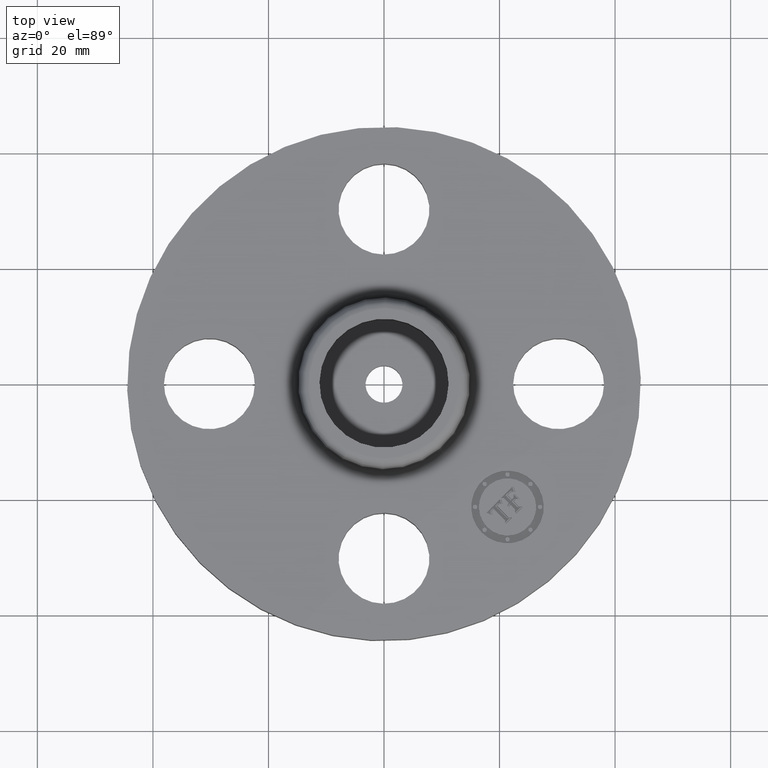
[diagram: clean part render]
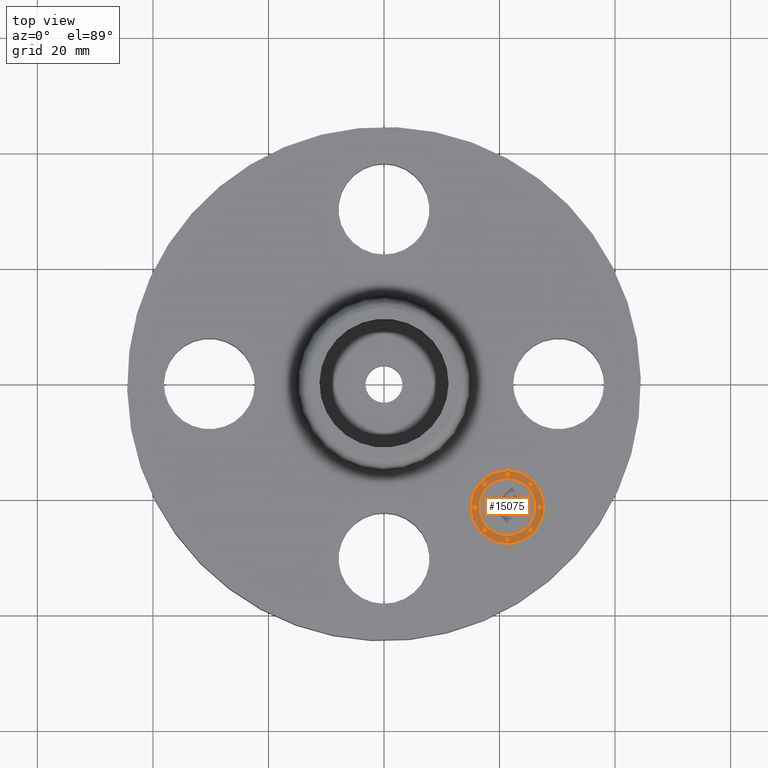
[diagram: same view with one face highlighted and labeled with its STEP entity id]
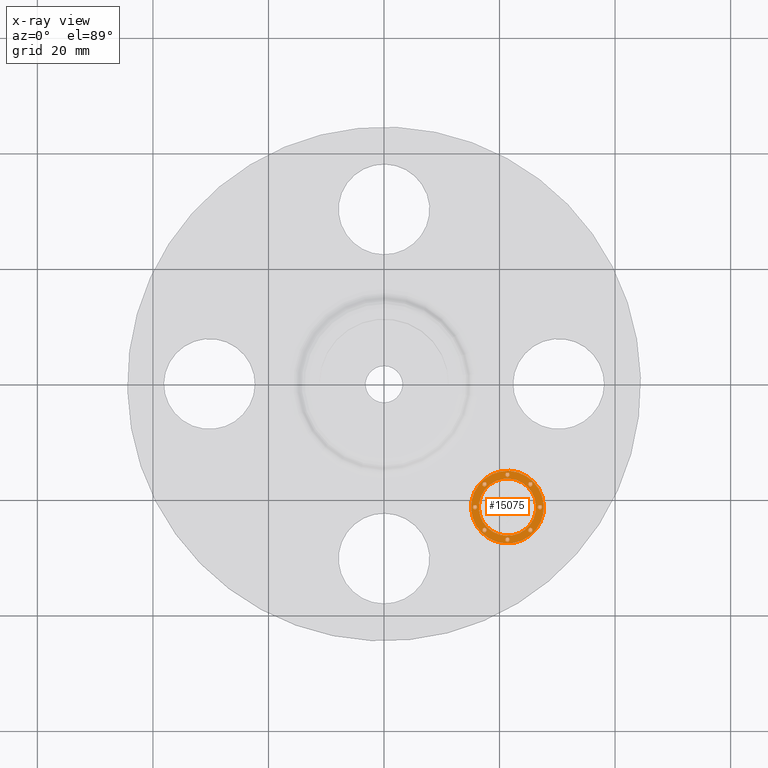
[diagram: x-ray of the same camera — body ghosted, the highlighted face saturated]
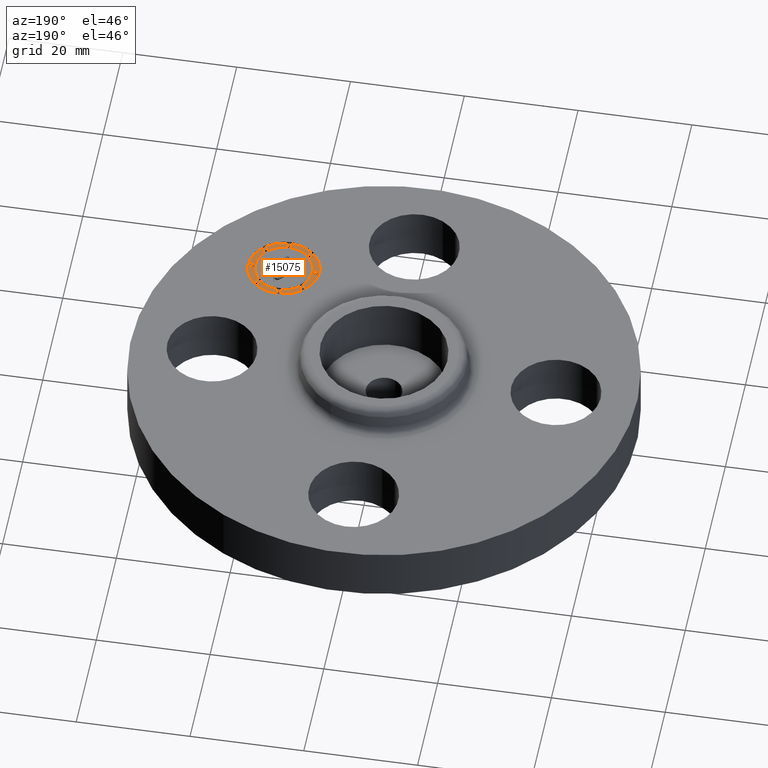
[diagram: same view with one face highlighted and labeled with its STEP entity id]
A machine part, top view. The second image highlights one B-rep face of the part: STEP entity #15075.
The next image is the same camera in x-ray: the body ghosted, the highlighted face saturated — about 0% of this face is hidden behind the body in this view.
A second angle (auxiliary view) of the same face is appended — the face is thin or edge-on in the first view.
In plain terms, the highlighted planar face has unit normal (0, -0, 1).
Its self-contained STEP definition (entity closure, byte-faithful):
#3726=AXIS2_PLACEMENT_3D('Plane Axis2P3D',#3723,#3724,#3725) ;
#14897=AXIS2_PLACEMENT_3D('Circle Axis2P3D',#14895,#14896,$) ;
#14906=AXIS2_PLACEMENT_3D('Circle Axis2P3D',#14904,#14905,$) ;
#14915=AXIS2_PLACEMENT_3D('Circle Axis2P3D',#14913,#14914,$) ;
#14924=AXIS2_PLACEMENT_3D('Circle Axis2P3D',#14922,#14923,$) ;
#14933=AXIS2_PLACEMENT_3D('Circle Axis2P3D',#14931,#14932,$) ;
#14942=AXIS2_PLACEMENT_3D('Circle Axis2P3D',#14940,#14941,$) ;
#14951=AXIS2_PLACEMENT_3D('Circle Axis2P3D',#14949,#14950,$) ;
#14960=AXIS2_PLACEMENT_3D('Circle Axis2P3D',#14958,#14959,$) ;
#14969=AXIS2_PLACEMENT_3D('Circle Axis2P3D',#14967,#14968,$) ;
#14978=AXIS2_PLACEMENT_3D('Circle Axis2P3D',#14976,#14977,$) ;
#14987=AXIS2_PLACEMENT_3D('Circle Axis2P3D',#14985,#14986,$) ;
#14996=AXIS2_PLACEMENT_3D('Circle Axis2P3D',#14994,#14995,$) ;
#15005=AXIS2_PLACEMENT_3D('Circle Axis2P3D',#15003,#15004,$) ;
#15014=AXIS2_PLACEMENT_3D('Circle Axis2P3D',#15012,#15013,$) ;
#15023=AXIS2_PLACEMENT_3D('Circle Axis2P3D',#15021,#15022,$) ;
#15032=AXIS2_PLACEMENT_3D('Circle Axis2P3D',#15030,#15031,$) ;
#15041=AXIS2_PLACEMENT_3D('Circle Axis2P3D',#15039,#15040,$) ;
#15050=AXIS2_PLACEMENT_3D('Circle Axis2P3D',#15048,#15049,$) ;
#15059=AXIS2_PLACEMENT_3D('Circle Axis2P3D',#15057,#15058,$) ;
#15068=AXIS2_PLACEMENT_3D('Circle Axis2P3D',#15066,#15067,$) ;
#3723=CARTESIAN_POINT('Axis2P3D Location',(0.,0.,0.365000000001)) ;
#14895=CARTESIAN_POINT('Axis2P3D Location',(0.841457069615,-0.841457069615,0.365000000001)) ;
#14899=CARTESIAN_POINT('Vertex',(1.01646599796,-0.666448141271,0.365000000001)) ;
#14901=CARTESIAN_POINT('Vertex',(0.666448141271,-1.01646599796,0.365000000001)) ;
#14904=CARTESIAN_POINT('Axis2P3D Location',(0.841457069615,-0.841457069615,0.365000000001)) ;
#14913=CARTESIAN_POINT('Axis2P3D Location',(0.841457069615,-0.841457069615,0.365000000001)) ;
#14917=CARTESIAN_POINT('Vertex',(0.703571247283,-0.979342891947,0.365000000001)) ;
#14919=CARTESIAN_POINT('Vertex',(0.979342891947,-0.703571247283,0.365000000001)) ;
#14922=CARTESIAN_POINT('Axis2P3D Location',(0.841457069615,-0.841457069615,0.365000000001)) ;
#14931=CARTESIAN_POINT('Axis2P3D Location',(0.685009694277,-0.685009694277,0.365000000001)) ;
#14935=CARTESIAN_POINT('Vertex',(0.674403092559,-0.695616295995,0.365000000001)) ;
#14937=CARTESIAN_POINT('Vertex',(0.695616295995,-0.674403092559,0.365000000001)) ;
#14940=CARTESIAN_POINT('Axis2P3D Location',(0.685009694277,-0.685009694277,0.365000000001)) ;
#14949=CARTESIAN_POINT('Axis2P3D Location',(0.997904444954,-0.685009694277,0.365000000001)) ;
#14953=CARTESIAN_POINT('Vertex',(0.987297843236,-0.695616295995,0.365000000001)) ;
#14955=CARTESIAN_POINT('Vertex',(1.00851104667,-0.674403092559,0.365000000001)) ;
#14958=CARTESIAN_POINT('Axis2P3D Location',(0.997904444954,-0.685009694277,0.365000000001)) ;
#14967=CARTESIAN_POINT('Axis2P3D Location',(0.841457069615,-0.620207069614,0.365000000001)) ;
#14971=CARTESIAN_POINT('Vertex',(0.830850467898,-0.630813671332,0.365000000001)) ;
#14973=CARTESIAN_POINT('Vertex',(0.852063671333,-0.609600467897,0.365000000001)) ;
#14976=CARTESIAN_POINT('Axis2P3D Location',(0.841457069615,-0.620207069614,0.365000000001)) ;
#14985=CARTESIAN_POINT('Axis2P3D Location',(0.997904444954,-0.997904444954,0.365000000001)) ;
#14989=CARTESIAN_POINT('Vertex',(0.987297843236,-1.00851104667,0.365000000001)) ;
#14991=CARTESIAN_POINT('Vertex',(1.00851104667,-0.987297843236,0.365000000001)) ;
#14994=CARTESIAN_POINT('Axis2P3D Location',(0.997904444954,-0.997904444954,0.365000000001)) ;
#15003=CARTESIAN_POINT('Axis2P3D Location',(1.06270706962,-0.841457069615,0.365000000001)) ;
#15007=CARTESIAN_POINT('Vertex',(1.0521004679,-0.852063671333,0.365000000001)) ;
#15009=CARTESIAN_POINT('Vertex',(1.07331367133,-0.830850467898,0.365000000001)) ;
#15012=CARTESIAN_POINT('Axis2P3D Location',(1.06270706962,-0.841457069615,0.365000000001)) ;
#15021=CARTESIAN_POINT('Axis2P3D Location',(0.685009694277,-0.997904444954,0.365000000001)) ;
#15025=CARTESIAN_POINT('Vertex',(0.695616295995,-0.987297843236,0.365000000001)) ;
#15027=CARTESIAN_POINT('Vertex',(0.674403092559,-1.00851104667,0.365000000001)) ;
#15030=CARTESIAN_POINT('Axis2P3D Location',(0.685009694277,-0.997904444954,0.365000000001)) ;
#15039=CARTESIAN_POINT('Axis2P3D Location',(0.620207069614,-0.841457069615,0.365000000001)) ;
#15043=CARTESIAN_POINT('Vertex',(0.630813671332,-0.830850467898,0.365000000001)) ;
#15045=CARTESIAN_POINT('Vertex',(0.609600467897,-0.852063671333,0.365000000001)) ;
#15048=CARTESIAN_POINT('Axis2P3D Location',(0.620207069614,-0.841457069615,0.365000000001)) ;
#15057=CARTESIAN_POINT('Axis2P3D Location',(0.841457069615,-1.06270706962,0.365000000001)) ;
#15061=CARTESIAN_POINT('Vertex',(0.852063671333,-1.0521004679,0.365000000001)) ;
#15063=CARTESIAN_POINT('Vertex',(0.830850467898,-1.07331367133,0.365000000001)) ;
#15066=CARTESIAN_POINT('Axis2P3D Location',(0.841457069615,-1.06270706962,0.365000000001)) ;
#3724=DIRECTION('Axis2P3D Direction',(0.,-0.,0.0393700787402)) ;
#3725=DIRECTION('Axis2P3D XDirection',(0.027838849653,0.027838849653,0.)) ;
#14896=DIRECTION('Axis2P3D Direction',(0.,-0.,0.0393700787402)) ;
#14905=DIRECTION('Axis2P3D Direction',(0.,-0.,0.0393700787402)) ;
#14914=DIRECTION('Axis2P3D Direction',(0.,-0.,0.0393700787402)) ;
#14923=DIRECTION('Axis2P3D Direction',(0.,-0.,0.0393700787402)) ;
#14932=DIRECTION('Axis2P3D Direction',(0.,-0.,0.0393700787402)) ;
#14941=DIRECTION('Axis2P3D Direction',(0.,-0.,0.0393700787402)) ;
#14950=DIRECTION('Axis2P3D Direction',(0.,-0.,0.0393700787402)) ;
#14959=DIRECTION('Axis2P3D Direction',(0.,-0.,0.0393700787402)) ;
#14968=DIRECTION('Axis2P3D Direction',(0.,-0.,0.0393700787402)) ;
#14977=DIRECTION('Axis2P3D Direction',(0.,-0.,0.0393700787402)) ;
#14986=DIRECTION('Axis2P3D Direction',(0.,-0.,0.0393700787402)) ;
#14995=DIRECTION('Axis2P3D Direction',(0.,-0.,0.0393700787402)) ;
#15004=DIRECTION('Axis2P3D Direction',(0.,-0.,0.0393700787402)) ;
#15013=DIRECTION('Axis2P3D Direction',(0.,-0.,0.0393700787402)) ;
#15022=DIRECTION('Axis2P3D Direction',(0.,-0.,0.0393700787402)) ;
#15031=DIRECTION('Axis2P3D Direction',(0.,-0.,0.0393700787402)) ;
#15040=DIRECTION('Axis2P3D Direction',(0.,-0.,0.0393700787402)) ;
#15049=DIRECTION('Axis2P3D Direction',(0.,-0.,0.0393700787402)) ;
#15058=DIRECTION('Axis2P3D Direction',(0.,-0.,0.0393700787402)) ;
#15067=DIRECTION('Axis2P3D Direction',(0.,-0.,0.0393700787402)) ;
#14910=ORIENTED_EDGE('',*,*,#14903,.T.) ;
#14911=ORIENTED_EDGE('',*,*,#14908,.T.) ;
#14928=ORIENTED_EDGE('',*,*,#14921,.F.) ;
#14929=ORIENTED_EDGE('',*,*,#14926,.F.) ;
#14946=ORIENTED_EDGE('',*,*,#14939,.F.) ;
#14947=ORIENTED_EDGE('',*,*,#14944,.F.) ;
#14964=ORIENTED_EDGE('',*,*,#14957,.F.) ;
#14965=ORIENTED_EDGE('',*,*,#14962,.F.) ;
#14982=ORIENTED_EDGE('',*,*,#14975,.F.) ;
#14983=ORIENTED_EDGE('',*,*,#14980,.F.) ;
#15000=ORIENTED_EDGE('',*,*,#14993,.F.) ;
#15001=ORIENTED_EDGE('',*,*,#14998,.F.) ;
#15018=ORIENTED_EDGE('',*,*,#15011,.F.) ;
#15019=ORIENTED_EDGE('',*,*,#15016,.F.) ;
#15036=ORIENTED_EDGE('',*,*,#15029,.F.) ;
#15037=ORIENTED_EDGE('',*,*,#15034,.F.) ;
#15054=ORIENTED_EDGE('',*,*,#15047,.F.) ;
#15055=ORIENTED_EDGE('',*,*,#15052,.F.) ;
#15072=ORIENTED_EDGE('',*,*,#15065,.F.) ;
#15073=ORIENTED_EDGE('',*,*,#15070,.F.) ;
#14930=FACE_BOUND('',#14927,.T.) ;
#14948=FACE_BOUND('',#14945,.T.) ;
#14966=FACE_BOUND('',#14963,.T.) ;
#14984=FACE_BOUND('',#14981,.T.) ;
#15002=FACE_BOUND('',#14999,.T.) ;
#15020=FACE_BOUND('',#15017,.T.) ;
#15038=FACE_BOUND('',#15035,.T.) ;
#15056=FACE_BOUND('',#15053,.T.) ;
#15074=FACE_BOUND('',#15071,.T.) ;
#15075=ADVANCED_FACE('PartBody',(#14912,#14930,#14948,#14966,#14984,#15002,#15020,#15038,#15056,#15074),#3727,.T.) ;
#14898=CIRCLE('generated circle',#14897,0.247500000001) ;
#14907=CIRCLE('generated circle',#14906,0.247500000001) ;
#14916=CIRCLE('generated circle',#14915,0.195000000001) ;
#14925=CIRCLE('generated circle',#14924,0.195000000001) ;
#14934=CIRCLE('generated circle',#14933,0.0150000000001) ;
#14943=CIRCLE('generated circle',#14942,0.0150000000001) ;
#14952=CIRCLE('generated circle',#14951,0.0150000000001) ;
#14961=CIRCLE('generated circle',#14960,0.0150000000001) ;
#14970=CIRCLE('generated circle',#14969,0.0150000000001) ;
#14979=CIRCLE('generated circle',#14978,0.0150000000001) ;
#14988=CIRCLE('generated circle',#14987,0.0150000000001) ;
#14997=CIRCLE('generated circle',#14996,0.0150000000001) ;
#15006=CIRCLE('generated circle',#15005,0.0150000000001) ;
#15015=CIRCLE('generated circle',#15014,0.0150000000001) ;
#15024=CIRCLE('generated circle',#15023,0.0150000000001) ;
#15033=CIRCLE('generated circle',#15032,0.0150000000001) ;
#15042=CIRCLE('generated circle',#15041,0.0150000000001) ;
#15051=CIRCLE('generated circle',#15050,0.0150000000001) ;
#15060=CIRCLE('generated circle',#15059,0.0150000000001) ;
#15069=CIRCLE('generated circle',#15068,0.0150000000001) ;
#14903=EDGE_CURVE('',#14900,#14902,#14898,.T.) ;
#14908=EDGE_CURVE('',#14902,#14900,#14907,.T.) ;
#14921=EDGE_CURVE('',#14918,#14920,#14916,.T.) ;
#14926=EDGE_CURVE('',#14920,#14918,#14925,.T.) ;
#14939=EDGE_CURVE('',#14936,#14938,#14934,.T.) ;
#14944=EDGE_CURVE('',#14938,#14936,#14943,.T.) ;
#14957=EDGE_CURVE('',#14954,#14956,#14952,.T.) ;
#14962=EDGE_CURVE('',#14956,#14954,#14961,.T.) ;
#14975=EDGE_CURVE('',#14972,#14974,#14970,.T.) ;
#14980=EDGE_CURVE('',#14974,#14972,#14979,.T.) ;
#14993=EDGE_CURVE('',#14990,#14992,#14988,.T.) ;
#14998=EDGE_CURVE('',#14992,#14990,#14997,.T.) ;
#15011=EDGE_CURVE('',#15008,#15010,#15006,.T.) ;
#15016=EDGE_CURVE('',#15010,#15008,#15015,.T.) ;
#15029=EDGE_CURVE('',#15026,#15028,#15024,.T.) ;
#15034=EDGE_CURVE('',#15028,#15026,#15033,.T.) ;
#15047=EDGE_CURVE('',#15044,#15046,#15042,.T.) ;
#15052=EDGE_CURVE('',#15046,#15044,#15051,.T.) ;
#15065=EDGE_CURVE('',#15062,#15064,#15060,.T.) ;
#15070=EDGE_CURVE('',#15064,#15062,#15069,.T.) ;
#14909=EDGE_LOOP('',(#14910,#14911)) ;
#14927=EDGE_LOOP('',(#14928,#14929)) ;
#14945=EDGE_LOOP('',(#14946,#14947)) ;
#14963=EDGE_LOOP('',(#14964,#14965)) ;
#14981=EDGE_LOOP('',(#14982,#14983)) ;
#14999=EDGE_LOOP('',(#15000,#15001)) ;
#15017=EDGE_LOOP('',(#15018,#15019)) ;
#15035=EDGE_LOOP('',(#15036,#15037)) ;
#15053=EDGE_LOOP('',(#15054,#15055)) ;
#15071=EDGE_LOOP('',(#15072,#15073)) ;
#14912=FACE_OUTER_BOUND('',#14909,.T.) ;
#3727=PLANE('',#3726) ;
#14900=VERTEX_POINT('',#14899) ;
#14902=VERTEX_POINT('',#14901) ;
#14918=VERTEX_POINT('',#14917) ;
#14920=VERTEX_POINT('',#14919) ;
#14936=VERTEX_POINT('',#14935) ;
#14938=VERTEX_POINT('',#14937) ;
#14954=VERTEX_POINT('',#14953) ;
#14956=VERTEX_POINT('',#14955) ;
#14972=VERTEX_POINT('',#14971) ;
#14974=VERTEX_POINT('',#14973) ;
#14990=VERTEX_POINT('',#14989) ;
#14992=VERTEX_POINT('',#14991) ;
#15008=VERTEX_POINT('',#15007) ;
#15010=VERTEX_POINT('',#15009) ;
#15026=VERTEX_POINT('',#15025) ;
#15028=VERTEX_POINT('',#15027) ;
#15044=VERTEX_POINT('',#15043) ;
#15046=VERTEX_POINT('',#15045) ;
#15062=VERTEX_POINT('',#15061) ;
#15064=VERTEX_POINT('',#15063) ;